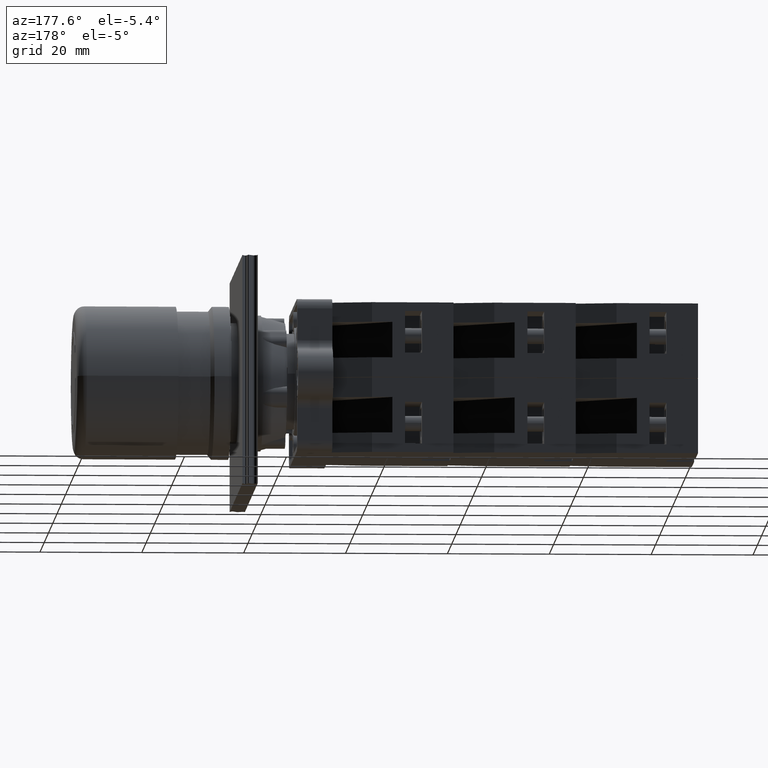
[diagram: clean part render]
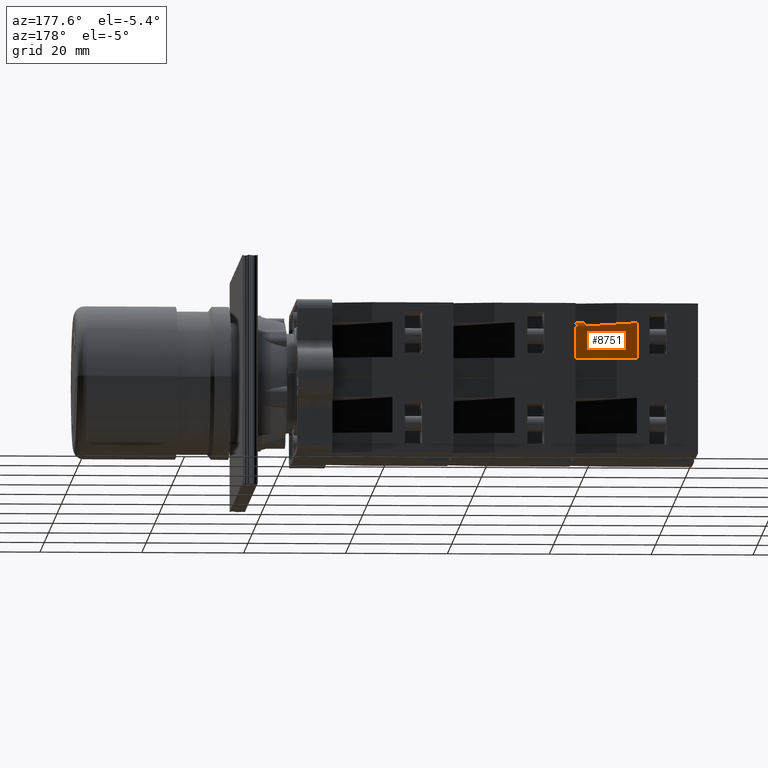
[diagram: same view with one face highlighted and labeled with its STEP entity id]
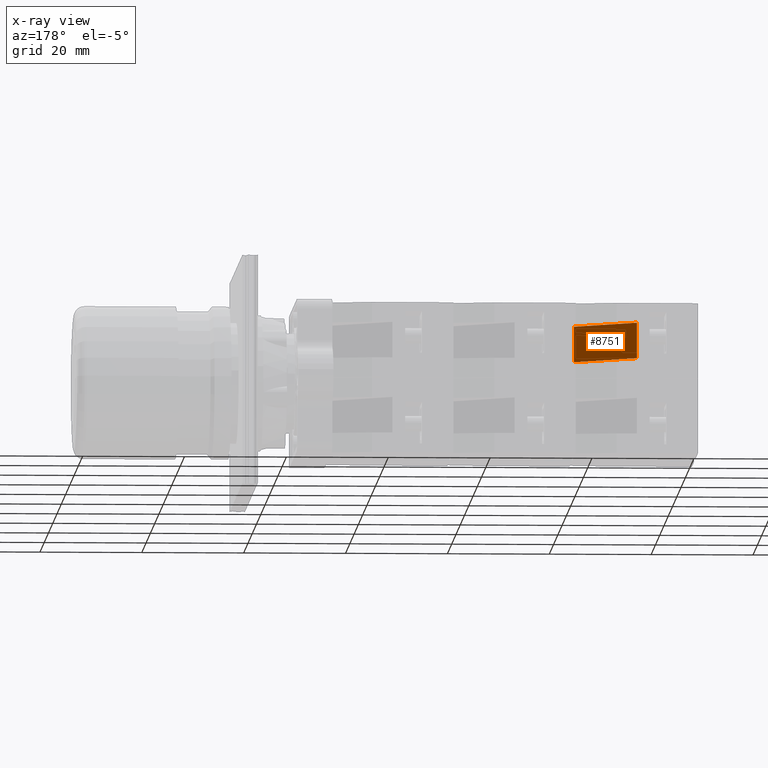
[diagram: x-ray of the same camera — body ghosted, the highlighted face saturated]
A machine part, auxiliary view. The second image highlights one B-rep face of the part: STEP entity #8751.
The next image is the same camera in x-ray: the body ghosted, the highlighted face saturated — about 0% of this face is hidden behind the body in this view.
In plain terms, the highlighted planar face has unit normal (-0.6, -0.8, -0).
Its self-contained STEP definition (entity closure, byte-faithful):
#8696=CARTESIAN_POINT('',(-24.936741828918464,-0.202926676720378,10.850000000000000));
#8697=VERTEX_POINT('',#8696);
#8704=CARTESIAN_POINT('',(-15.936741828918466,11.797073323279626,10.850000000000000));
#8705=VERTEX_POINT('',#8704);
#8706=CARTESIAN_POINT('',(-24.936741828918464,-0.202926676720378,10.850000000000000));
#8707=DIRECTION('',(0.600000000000000,0.800000000000000,0.0));
#8708=VECTOR('',#8707,15.000000000000002);
#8709=LINE('',#8706,#8708);
#8710=EDGE_CURVE('',#8697,#8705,#8709,.T.);
#8721=CARTESIAN_POINT('',(-15.936741828918466,11.797073323279626,7.350000000000000));
#8722=DIRECTION('',(-0.800000000000000,0.600000000000000,0.0));
#8723=DIRECTION('',(0.0,0.0,1.0));
#8724=AXIS2_PLACEMENT_3D('',#8721,#8722,#8723);
#8725=PLANE('',#8724);
#8726=CARTESIAN_POINT('',(-15.936741828918466,11.797073323279626,3.850000000000001));
#8727=VERTEX_POINT('',#8726);
#8728=CARTESIAN_POINT('',(-24.936741828918464,-0.202926676720378,3.850000000000001));
#8729=VERTEX_POINT('',#8728);
#8730=CARTESIAN_POINT('',(-15.936741828918466,11.797073323279626,3.850000000000001));
#8731=DIRECTION('',(-0.600000000000000,-0.800000000000000,0.0));
#8732=VECTOR('',#8731,15.000000000000002);
#8733=LINE('',#8730,#8732);
#8734=EDGE_CURVE('',#8727,#8729,#8733,.T.);
#8735=ORIENTED_EDGE('',*,*,#8734,.F.);
#8736=CARTESIAN_POINT('',(-15.936741828918466,11.797073323279626,10.850000000000000));
#8737=DIRECTION('',(0.0,0.0,-1.0));
#8738=VECTOR('',#8737,6.999999999999999);
#8739=LINE('',#8736,#8738);
#8740=EDGE_CURVE('',#8705,#8727,#8739,.T.);
#8741=ORIENTED_EDGE('',*,*,#8740,.F.);
#8742=ORIENTED_EDGE('',*,*,#8710,.F.);
#8743=CARTESIAN_POINT('',(-24.936741828918464,-0.202926676720378,3.850000000000001));
#8744=DIRECTION('',(0.0,0.0,1.0));
#8745=VECTOR('',#8744,6.999999999999999);
#8746=LINE('',#8743,#8745);
#8747=EDGE_CURVE('',#8729,#8697,#8746,.T.);
#8748=ORIENTED_EDGE('',*,*,#8747,.F.);
#8749=EDGE_LOOP('',(#8735,#8741,#8742,#8748));
#8750=FACE_OUTER_BOUND('',#8749,.T.);
#8751=ADVANCED_FACE('',(#8750),#8725,.F.);